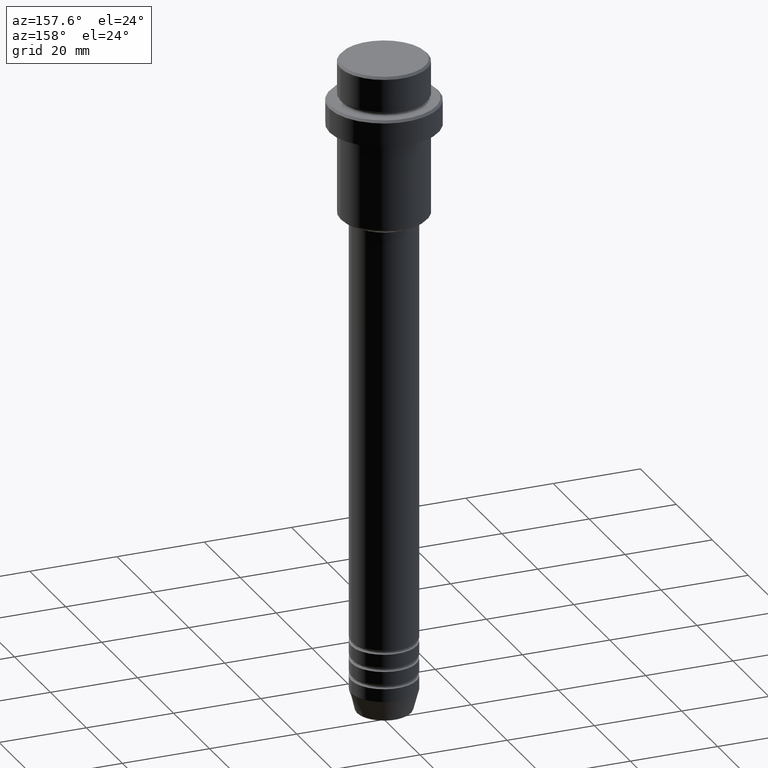
[diagram: clean part render]
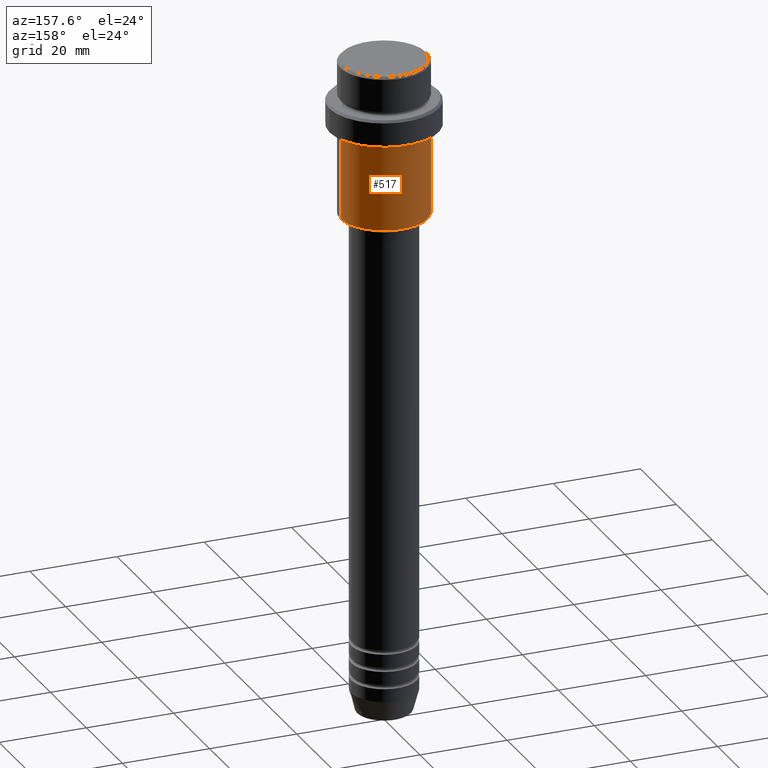
[diagram: same view with one face highlighted and labeled with its STEP entity id]
A machine part, auxiliary view. The second image highlights one B-rep face of the part: STEP entity #517.
In plain terms, the highlighted cylindrical surface (partial cylindrical patch) has radius 10 mm, axis along (-0, -0, 1).
Its self-contained STEP definition (entity closure, byte-faithful):
#3 = DIRECTION ( 'NONE',  ( -0.000000000000000000, -0.000000000000000000, 1.000000000000000000 ) ) ;
#37 = CARTESIAN_POINT ( 'NONE',  ( 10.00000000000000000, 0.000000000000000000, -35.49999999999995737 ) ) ;
#92 = DIRECTION ( 'NONE',  ( 1.000000000000000000, 0.000000000000000000, 0.000000000000000000 ) ) ;
#112 = AXIS2_PLACEMENT_3D ( 'NONE', #1095, #3, #912 ) ;
#166 = EDGE_CURVE ( 'NONE', #227, #1072, #1173, .T. ) ;
#227 = VERTEX_POINT ( 'NONE', #1092 ) ;
#262 = EDGE_LOOP ( 'NONE', ( #1244, #799, #333, #878 ) ) ;
#277 = FACE_OUTER_BOUND ( 'NONE', #262, .T. ) ;
#333 = ORIENTED_EDGE ( 'NONE', *, *, #166, .F. ) ;
#382 = CARTESIAN_POINT ( 'NONE',  ( -10.00000000000000000, 1.224646799147353256E-15, -35.49999999999995737 ) ) ;
#457 = VERTEX_POINT ( 'NONE', #37 ) ;
#510 = CIRCLE ( 'NONE', #112, 10.00000000000000000 ) ;
#517 = ADVANCED_FACE ( 'NONE', ( #277 ), #1260, .T. ) ;
#550 = EDGE_CURVE ( 'NONE', #457, #227, #982, .T. ) ;
#590 = CARTESIAN_POINT ( 'NONE',  ( -10.00000000000000000, 1.224646799147353256E-15, -16.00000000000000000 ) ) ;
#627 = VECTOR ( 'NONE', #664, 1000.000000000000000 ) ;
#664 = DIRECTION ( 'NONE',  ( -0.000000000000000000, -0.000000000000000000, 1.000000000000000000 ) ) ;
#726 = DIRECTION ( 'NONE',  ( -0.000000000000000000, -0.000000000000000000, 1.000000000000000000 ) ) ;
#734 = VECTOR ( 'NONE', #816, 1000.000000000000000 ) ;
#743 = EDGE_CURVE ( 'NONE', #1344, #1072, #1233, .T. ) ;
#794 = CARTESIAN_POINT ( 'NONE',  ( -10.00000000000000000, 1.224646799147353256E-15, 0.000000000000000000 ) ) ;
#799 = ORIENTED_EDGE ( 'NONE', *, *, #743, .T. ) ;
#801 = AXIS2_PLACEMENT_3D ( 'NONE', #1378, #726, #851 ) ;
#816 = DIRECTION ( 'NONE',  ( -0.000000000000000000, -0.000000000000000000, 1.000000000000000000 ) ) ;
#851 = DIRECTION ( 'NONE',  ( 1.000000000000000000, 0.000000000000000000, 0.000000000000000000 ) ) ;
#878 = ORIENTED_EDGE ( 'NONE', *, *, #550, .F. ) ;
#912 = DIRECTION ( 'NONE',  ( -1.000000000000000000, 0.000000000000000000, 0.000000000000000000 ) ) ;
#982 = LINE ( 'NONE', #1076, #627 ) ;
#1072 = VERTEX_POINT ( 'NONE', #590 ) ;
#1073 = DIRECTION ( 'NONE',  ( -0.000000000000000000, -0.000000000000000000, 1.000000000000000000 ) ) ;
#1076 = CARTESIAN_POINT ( 'NONE',  ( 10.00000000000000000, 0.000000000000000000, 0.000000000000000000 ) ) ;
#1092 = CARTESIAN_POINT ( 'NONE',  ( 10.00000000000000000, 0.000000000000000000, -16.00000000000000000 ) ) ;
#1095 = CARTESIAN_POINT ( 'NONE',  ( 0.000000000000000000, 0.000000000000000000, -35.49999999999995737 ) ) ;
#1132 = AXIS2_PLACEMENT_3D ( 'NONE', #1181, #1073, #92 ) ;
#1173 = CIRCLE ( 'NONE', #1132, 10.00000000000000000 ) ;
#1181 = CARTESIAN_POINT ( 'NONE',  ( 0.000000000000000000, 0.000000000000000000, -16.00000000000000000 ) ) ;
#1196 = EDGE_CURVE ( 'NONE', #457, #1344, #510, .T. ) ;
#1233 = LINE ( 'NONE', #794, #734 ) ;
#1244 = ORIENTED_EDGE ( 'NONE', *, *, #1196, .T. ) ;
#1260 = CYLINDRICAL_SURFACE ( 'NONE', #801, 10.00000000000000000 ) ;
#1344 = VERTEX_POINT ( 'NONE', #382 ) ;
#1378 = CARTESIAN_POINT ( 'NONE',  ( 0.000000000000000000, 0.000000000000000000, 0.000000000000000000 ) ) ;